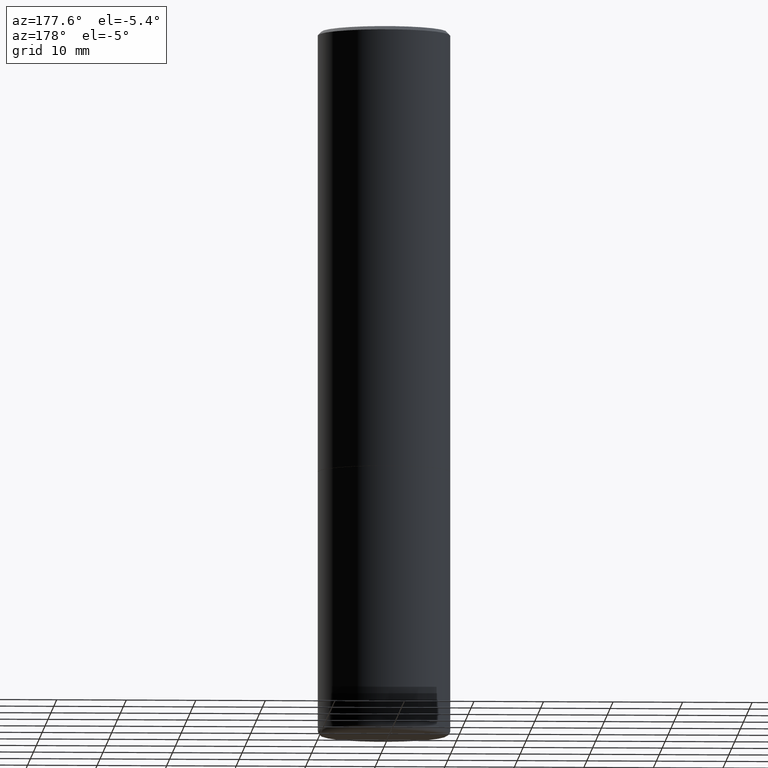
[diagram: clean part render]
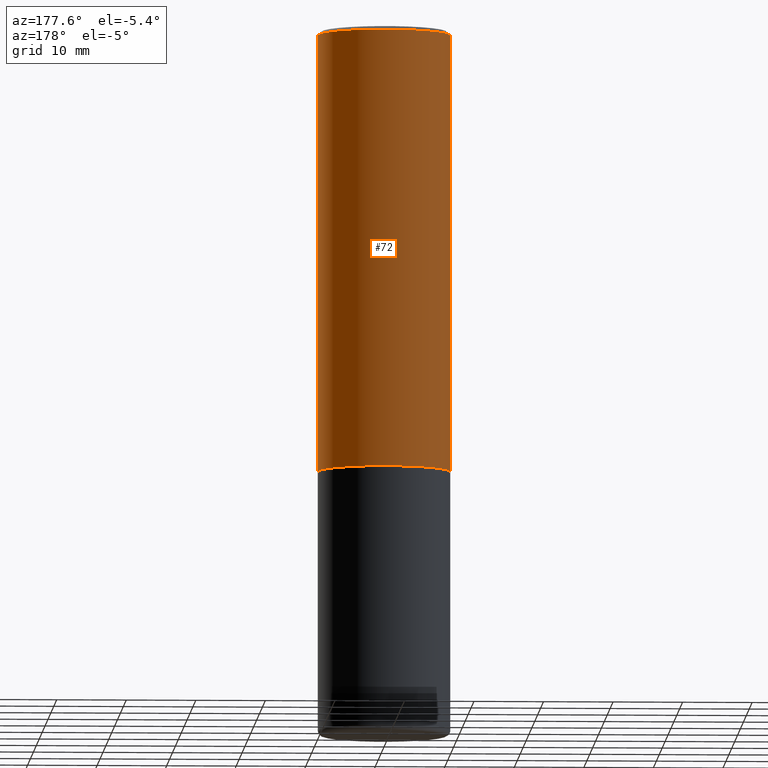
[diagram: same view with one face highlighted and labeled with its STEP entity id]
A machine part, auxiliary view. The second image highlights one B-rep face of the part: STEP entity #72.
In plain terms, the highlighted cylindrical surface (partial cylindrical patch) has radius 9.525 mm, axis along (-0, 0, 1).
Its self-contained STEP definition (entity closure, byte-faithful):
#1 = VECTOR ( 'NONE', #276, 39.37007874015748143 ) ;
#5 = LINE ( 'NONE', #280, #1 ) ;
#16 = VERTEX_POINT ( 'NONE', #95 ) ;
#24 = AXIS2_PLACEMENT_3D ( 'NONE', #343, #35, #242 ) ;
#35 = DIRECTION ( 'NONE',  ( -2.445468806185136597E-29, 3.491481338843145583E-15, 1.000000000000000000 ) ) ;
#42 = EDGE_CURVE ( 'NONE', #45, #322, #411, .T. ) ;
#44 = DIRECTION ( 'NONE',  ( -2.445468806185136877E-29, 3.491481338843145188E-15, 1.000000000000000000 ) ) ;
#45 = VERTEX_POINT ( 'NONE', #336 ) ;
#72 = ADVANCED_FACE ( 'NONE', ( #397 ), #425, .T. ) ;
#95 = CARTESIAN_POINT ( 'NONE',  ( 0.3750000000000000555, -1.134382286990137353E-14, -2.499000000000000998 ) ) ;
#103 = DIRECTION ( 'NONE',  ( -2.445468806185136597E-29, 3.491481338843145583E-15, 1.000000000000000000 ) ) ;
#117 = CARTESIAN_POINT ( 'NONE',  ( 0.3749999999999998335, -2.618611004132348439E-15, 1.828566290923475082E-29 ) ) ;
#123 = EDGE_LOOP ( 'NONE', ( #301, #320, #237, #435 ) ) ;
#126 = CARTESIAN_POINT ( 'NONE',  ( 0.000000000000000000, 0.000000000000000000, 0.000000000000000000 ) ) ;
#139 = CARTESIAN_POINT ( 'NONE',  ( -0.3749999999999999445, -1.732985487172565737E-15, -2.499000000000000998 ) ) ;
#164 = CARTESIAN_POINT ( 'NONE',  ( 4.890937612370278413E-31, -6.982962677686297772E-17, -0.02000000000000002123 ) ) ;
#170 = DIRECTION ( 'NONE',  ( -2.445468806185136597E-29, 3.491481338843145583E-15, 1.000000000000000000 ) ) ;
#177 = CARTESIAN_POINT ( 'NONE',  ( -0.3749999999999996669, 2.548781377355484746E-15, -0.02000000000000002123 ) ) ;
#237 = ORIENTED_EDGE ( 'NONE', *, *, #42, .F. ) ;
#240 = DIRECTION ( 'NONE',  ( 1.000000000000000000, -6.982962677686265922E-15, 4.876176775795935793E-29 ) ) ;
#242 = DIRECTION ( 'NONE',  ( 1.000000000000000000, -6.982962677686264344E-15, 0.000000000000000000 ) ) ;
#270 = AXIS2_PLACEMENT_3D ( 'NONE', #164, #170, #363 ) ;
#276 = DIRECTION ( 'NONE',  ( -2.445468806185136877E-29, 3.491481338843145188E-15, 1.000000000000000000 ) ) ;
#280 = CARTESIAN_POINT ( 'NONE',  ( -0.3749999999999998335, 2.664535259100374514E-15, -1.844600658845588757E-29 ) ) ;
#283 = EDGE_CURVE ( 'NONE', #324, #322, #5, .T. ) ;
#296 = EDGE_CURVE ( 'NONE', #16, #324, #386, .T. ) ;
#297 = AXIS2_PLACEMENT_3D ( 'NONE', #126, #103, #240 ) ;
#301 = ORIENTED_EDGE ( 'NONE', *, *, #296, .T. ) ;
#320 = ORIENTED_EDGE ( 'NONE', *, *, #283, .T. ) ;
#322 = VERTEX_POINT ( 'NONE', #177 ) ;
#323 = VECTOR ( 'NONE', #44, 39.37007874015748143 ) ;
#324 = VERTEX_POINT ( 'NONE', #139 ) ;
#336 = CARTESIAN_POINT ( 'NONE',  ( 0.3749999999999996669, -2.642516375941185268E-15, -0.02000000000000002123 ) ) ;
#343 = CARTESIAN_POINT ( 'NONE',  ( 6.111226546656659252E-29, -8.725211865769023513E-15, -2.499000000000000998 ) ) ;
#363 = DIRECTION ( 'NONE',  ( 1.000000000000000000, -6.982962677686266711E-15, 0.000000000000000000 ) ) ;
#386 = CIRCLE ( 'NONE', #24, 0.3750000000000000555 ) ;
#397 = FACE_OUTER_BOUND ( 'NONE', #123, .T. ) ;
#411 = CIRCLE ( 'NONE', #270, 0.3749999999999996669 ) ;
#421 = LINE ( 'NONE', #117, #323 ) ;
#425 = CYLINDRICAL_SURFACE ( 'NONE', #297, 0.3749999999999998335 ) ;
#432 = EDGE_CURVE ( 'NONE', #16, #45, #421, .T. ) ;
#435 = ORIENTED_EDGE ( 'NONE', *, *, #432, .F. ) ;